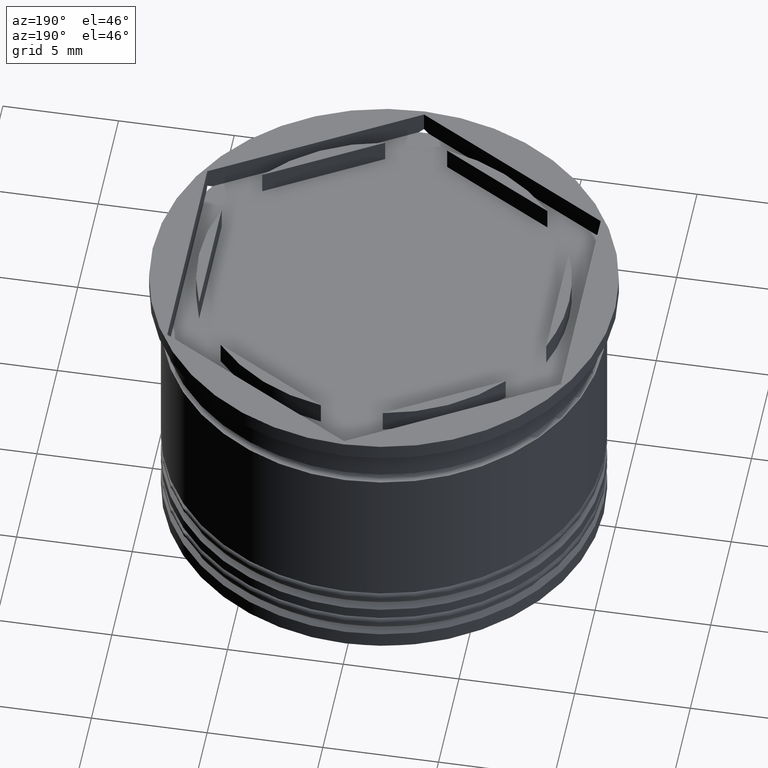
[diagram: clean part render]
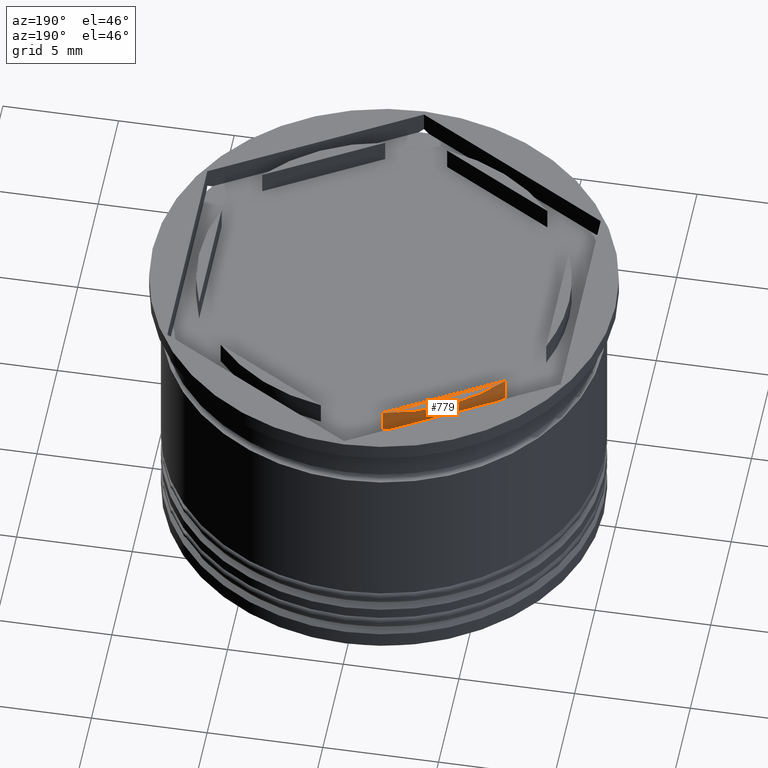
[diagram: same view with one face highlighted and labeled with its STEP entity id]
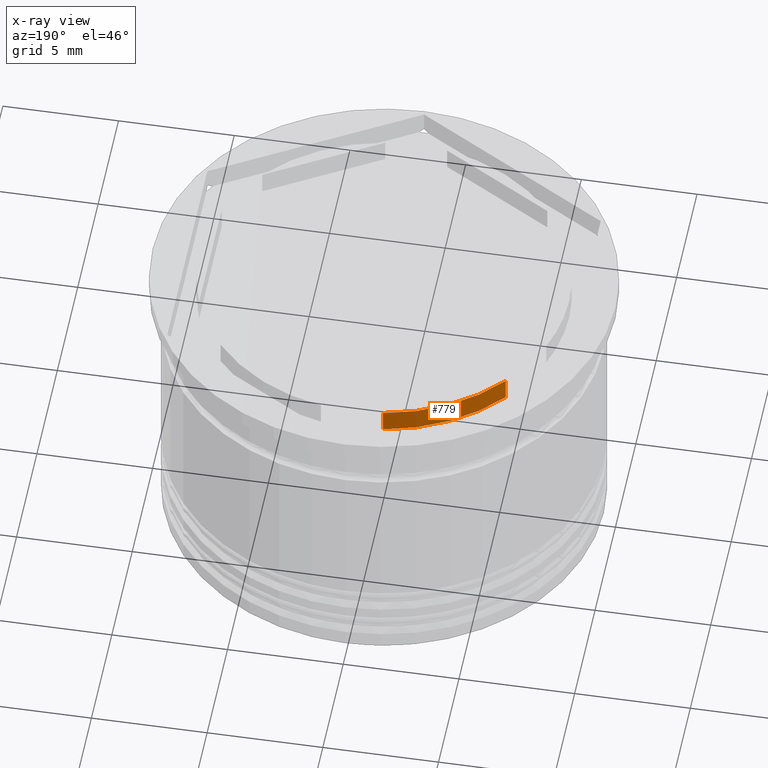
[diagram: x-ray of the same camera — body ghosted, the highlighted face saturated]
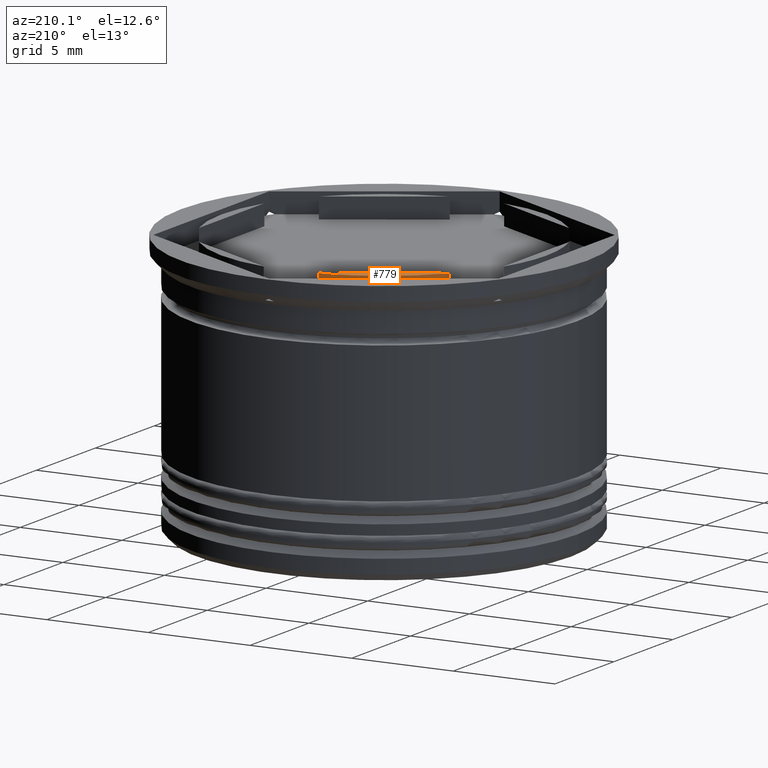
[diagram: same view with one face highlighted and labeled with its STEP entity id]
A machine part, auxiliary view. The second image highlights one B-rep face of the part: STEP entity #779.
The next image is the same camera in x-ray: the body ghosted, the highlighted face saturated — about 0% of this face is hidden behind the body in this view.
A second angle (auxiliary view) of the same face is appended — the face is thin or edge-on in the first view.
In plain terms, the highlighted cylindrical surface (partial cylindrical patch) has radius 8 mm, axis along (-0, -0, -1).
Its self-contained STEP definition (entity closure, byte-faithful):
#5 = EDGE_LOOP ( 'NONE', ( #745, #1755, #498, #1987 ) ) ;
#34 = EDGE_CURVE ( 'NONE', #1025, #299, #81, .T. ) ;
#66 = DIRECTION ( 'NONE',  ( -1.000000000000000000, 0.000000000000000000, 0.000000000000000000 ) ) ;
#81 = CIRCLE ( 'NONE', #424, 8.000000000000000000 ) ;
#200 = CARTESIAN_POINT ( 'NONE',  ( -6.160912690248240509, 5.103249437675782652, 22.62741699796951522 ) ) ;
#228 = FACE_OUTER_BOUND ( 'NONE', #5, .T. ) ;
#240 = CARTESIAN_POINT ( 'NONE',  ( -6.160912690248237844, 5.103249437675788869, -1.000000000000000888 ) ) ;
#281 = CIRCLE ( 'NONE', #1350, 8.000000000000000000 ) ;
#299 = VERTEX_POINT ( 'NONE', #240 ) ;
#308 = DIRECTION ( 'NONE',  ( 0.000000000000000000, 0.000000000000000000, 1.000000000000000000 ) ) ;
#318 = VERTEX_POINT ( 'NONE', #1051 ) ;
#368 = EDGE_CURVE ( 'NONE', #318, #1050, #281, .T. ) ;
#395 = CARTESIAN_POINT ( 'NONE',  ( 0.000000000000000000, 0.000000000000000000, 0.000000000000000000 ) ) ;
#424 = AXIS2_PLACEMENT_3D ( 'NONE', #1645, #308, #689 ) ;
#498 = ORIENTED_EDGE ( 'NONE', *, *, #34, .T. ) ;
#500 = CARTESIAN_POINT ( 'NONE',  ( -1.339087309751765487, 7.887131619090796519, -1.000000000000000888 ) ) ;
#544 = LINE ( 'NONE', #200, #1275 ) ;
#689 = DIRECTION ( 'NONE',  ( 1.000000000000000000, 0.000000000000000000, 0.000000000000000000 ) ) ;
#729 = DIRECTION ( 'NONE',  ( 0.000000000000000000, 0.000000000000000000, 1.000000000000000000 ) ) ;
#745 = ORIENTED_EDGE ( 'NONE', *, *, #368, .F. ) ;
#779 = ADVANCED_FACE ( 'NONE', ( #228 ), #1038, .T. ) ;
#789 = AXIS2_PLACEMENT_3D ( 'NONE', #903, #1575, #66 ) ;
#802 = EDGE_CURVE ( 'NONE', #318, #1025, #1449, .T. ) ;
#903 = CARTESIAN_POINT ( 'NONE',  ( 0.000000000000000000, 0.000000000000000000, 22.62741699796951522 ) ) ;
#941 = VECTOR ( 'NONE', #2106, 1000.000000000000000 ) ;
#1025 = VERTEX_POINT ( 'NONE', #500 ) ;
#1027 = CARTESIAN_POINT ( 'NONE',  ( -6.160912690248235180, 5.103249437675786204, 0.000000000000000000 ) ) ;
#1038 = CYLINDRICAL_SURFACE ( 'NONE', #789, 8.000000000000000000 ) ;
#1050 = VERTEX_POINT ( 'NONE', #1027 ) ;
#1051 = CARTESIAN_POINT ( 'NONE',  ( -1.339087309751765487, 7.887131619090796519, 0.000000000000000000 ) ) ;
#1072 = DIRECTION ( 'NONE',  ( 1.000000000000000000, 0.000000000000000000, 0.000000000000000000 ) ) ;
#1275 = VECTOR ( 'NONE', #729, 1000.000000000000000 ) ;
#1350 = AXIS2_PLACEMENT_3D ( 'NONE', #395, #1420, #1072 ) ;
#1420 = DIRECTION ( 'NONE',  ( -0.000000000000000000, -0.000000000000000000, 1.000000000000000000 ) ) ;
#1439 = CARTESIAN_POINT ( 'NONE',  ( -1.339087309751759047, 7.887131619090796519, 22.62741699796951522 ) ) ;
#1442 = EDGE_CURVE ( 'NONE', #299, #1050, #544, .T. ) ;
#1449 = LINE ( 'NONE', #1439, #941 ) ;
#1575 = DIRECTION ( 'NONE',  ( -0.000000000000000000, -0.000000000000000000, -1.000000000000000000 ) ) ;
#1645 = CARTESIAN_POINT ( 'NONE',  ( 0.000000000000000000, 0.000000000000000000, -1.000000000000000000 ) ) ;
#1755 = ORIENTED_EDGE ( 'NONE', *, *, #802, .T. ) ;
#1987 = ORIENTED_EDGE ( 'NONE', *, *, #1442, .T. ) ;
#2106 = DIRECTION ( 'NONE',  ( -0.000000000000000000, -0.000000000000000000, -1.000000000000000000 ) ) ;